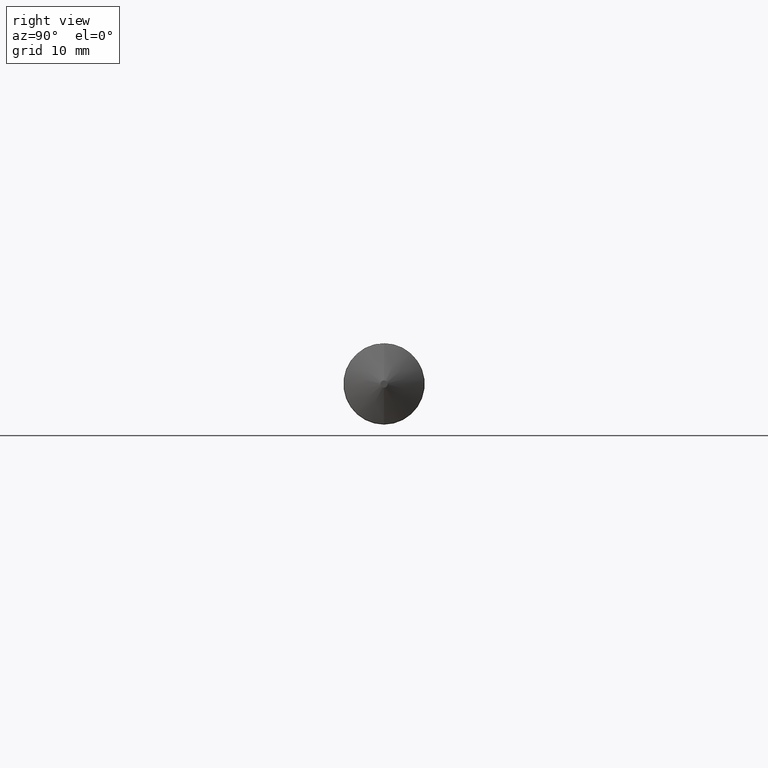
[diagram: clean part render]
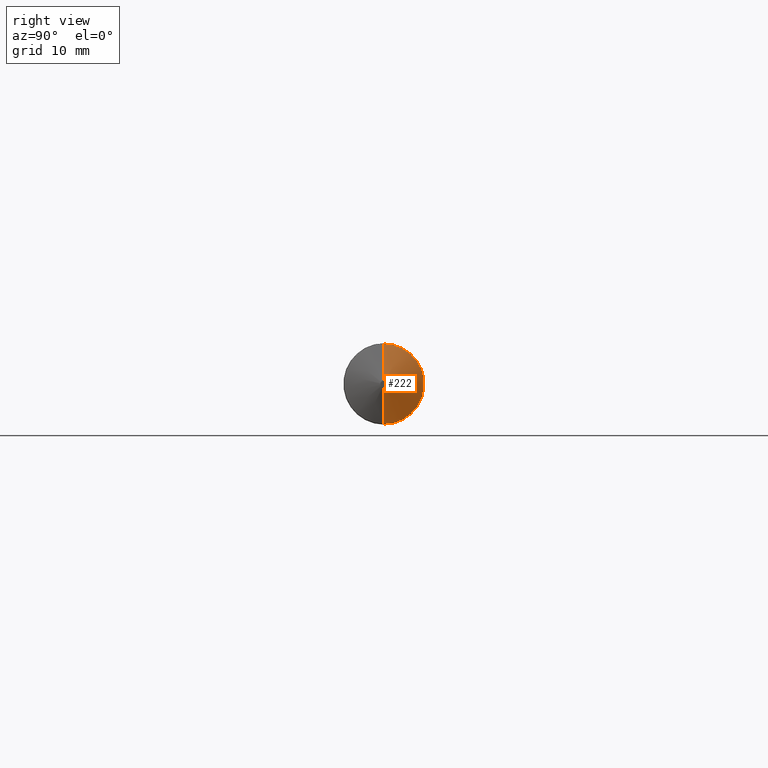
[diagram: same view with one face highlighted and labeled with its STEP entity id]
A machine part, right view. The second image highlights one B-rep face of the part: STEP entity #222.
In plain terms, the highlighted conical surface has half-angle 70 deg.
Its self-contained STEP definition (entity closure, byte-faithful):
#8 = VERTEX_POINT ( 'NONE', #329 ) ;
#25 = DIRECTION ( 'NONE',  ( -0.3420201433256665480, 1.150791560227851256E-16, -0.9396926207859092051 ) ) ;
#33 = EDGE_CURVE ( 'NONE', #205, #8, #122, .T. ) ;
#49 = CARTESIAN_POINT ( 'NONE',  ( 3.503937007874015741, 1.298125607096199845E-17, -0.01750000000000043535 ) ) ;
#51 = LINE ( 'NONE', #344, #166 ) ;
#89 = VERTEX_POINT ( 'NONE', #339 ) ;
#93 = EDGE_CURVE ( 'NONE', #89, #8, #179, .T. ) ;
#97 = DIRECTION ( 'NONE',  ( -0.3420201433256665480, 0.000000000000000000, 0.9396926207859092051 ) ) ;
#98 = VECTOR ( 'NONE', #97, 39.37007874015748143 ) ;
#116 = AXIS2_PLACEMENT_3D ( 'NONE', #245, #218, #362 ) ;
#122 = LINE ( 'NONE', #355, #98 ) ;
#135 = AXIS2_PLACEMENT_3D ( 'NONE', #252, #163, #199 ) ;
#145 = EDGE_CURVE ( 'NONE', #261, #205, #227, .T. ) ;
#163 = DIRECTION ( 'NONE',  ( -1.000000000000000000, 0.000000000000000000, 0.000000000000000000 ) ) ;
#166 = VECTOR ( 'NONE', #25, 39.37007874015748143 ) ;
#179 = CIRCLE ( 'NONE', #116, 0.1945000000000004503 ) ;
#199 = DIRECTION ( 'NONE',  ( 0.000000000000000000, 0.000000000000000000, 1.000000000000000000 ) ) ;
#205 = VERTEX_POINT ( 'NONE', #282 ) ;
#211 = EDGE_LOOP ( 'NONE', ( #238, #241, #351, #212 ) ) ;
#212 = ORIENTED_EDGE ( 'NONE', *, *, #33, .F. ) ;
#218 = DIRECTION ( 'NONE',  ( 1.000000000000000000, -0.000000000000000000, -0.000000000000000000 ) ) ;
#222 = ADVANCED_FACE ( 'NONE', ( #243 ), #275, .T. ) ;
#224 = DIRECTION ( 'NONE',  ( 1.000000000000000000, -0.000000000000000000, -0.000000000000000000 ) ) ;
#227 = CIRCLE ( 'NONE', #320, 0.01750000000000043535 ) ;
#238 = ORIENTED_EDGE ( 'NONE', *, *, #145, .F. ) ;
#241 = ORIENTED_EDGE ( 'NONE', *, *, #270, .T. ) ;
#243 = FACE_OUTER_BOUND ( 'NONE', #211, .T. ) ;
#245 = CARTESIAN_POINT ( 'NONE',  ( 3.439514276408898397, 0.000000000000000000, 0.000000000000000000 ) ) ;
#252 = CARTESIAN_POINT ( 'NONE',  ( 3.503937007874015741, 0.000000000000000000, 0.000000000000000000 ) ) ;
#261 = VERTEX_POINT ( 'NONE', #49 ) ;
#270 = EDGE_CURVE ( 'NONE', #261, #89, #51, .T. ) ;
#275 = CONICAL_SURFACE ( 'NONE', #135, 0.01750000000000043535, 1.221730476396033049 ) ;
#282 = CARTESIAN_POINT ( 'NONE',  ( 3.503937007874015741, 0.000000000000000000, 0.01750000000000043535 ) ) ;
#306 = DIRECTION ( 'NONE',  ( 0.000000000000000000, 0.000000000000000000, -1.000000000000000000 ) ) ;
#320 = AXIS2_PLACEMENT_3D ( 'NONE', #337, #224, #306 ) ;
#329 = CARTESIAN_POINT ( 'NONE',  ( 3.439514276408898397, 0.000000000000000000, 0.1945000000000004781 ) ) ;
#337 = CARTESIAN_POINT ( 'NONE',  ( 3.503937007874015741, 0.000000000000000000, 0.000000000000000000 ) ) ;
#339 = CARTESIAN_POINT ( 'NONE',  ( 3.439514276408898397, 2.381938024341608115E-17, -0.1945000000000004781 ) ) ;
#344 = CARTESIAN_POINT ( 'NONE',  ( 3.503937007874015741, 2.143131898507921145E-18, -0.01750000000000043535 ) ) ;
#351 = ORIENTED_EDGE ( 'NONE', *, *, #93, .T. ) ;
#355 = CARTESIAN_POINT ( 'NONE',  ( 3.503937007874015741, 0.000000000000000000, 0.01750000000000043535 ) ) ;
#362 = DIRECTION ( 'NONE',  ( 0.000000000000000000, 0.000000000000000000, -1.000000000000000000 ) ) ;